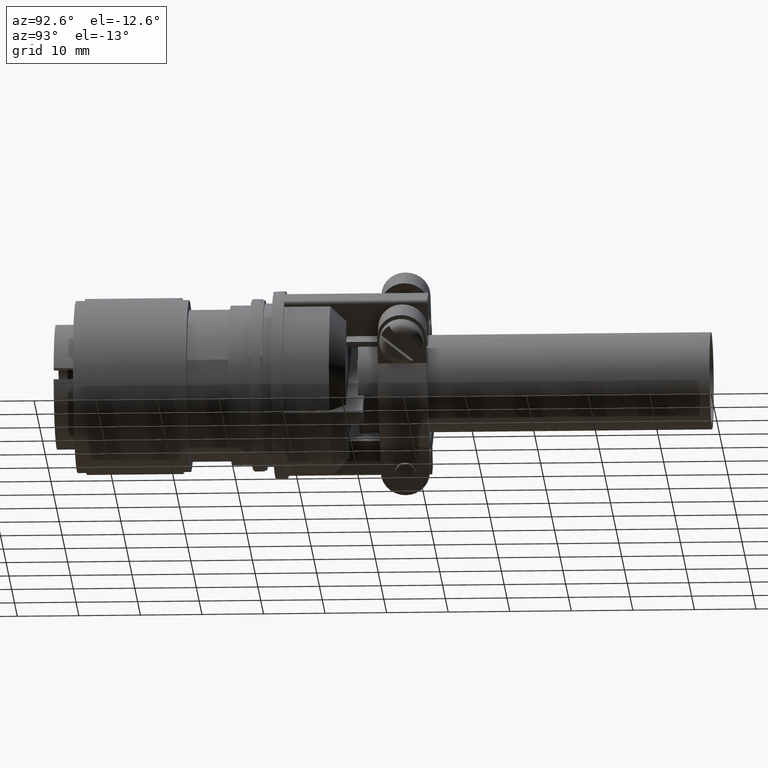
[diagram: clean part render]
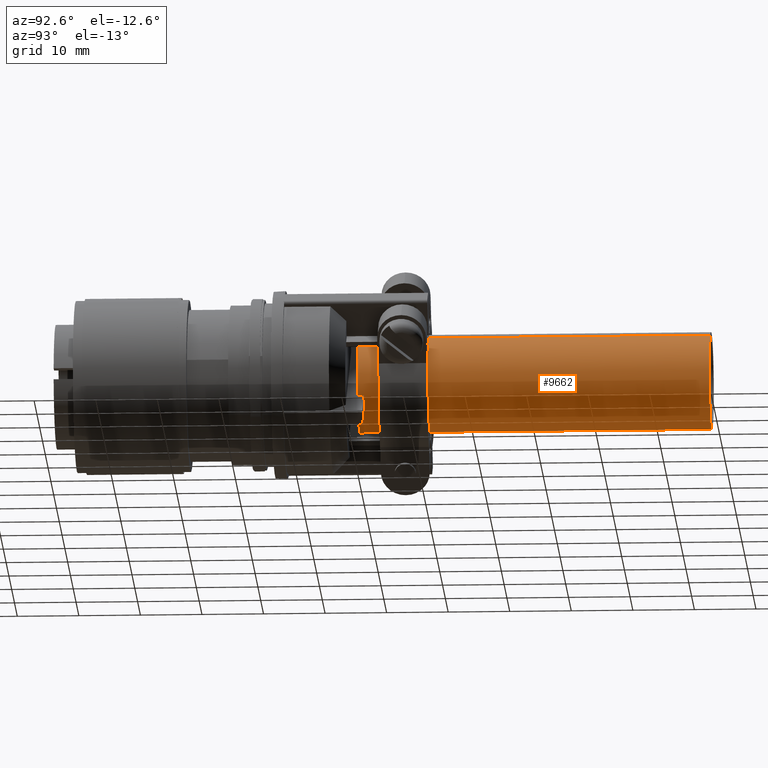
[diagram: same view with one face highlighted and labeled with its STEP entity id]
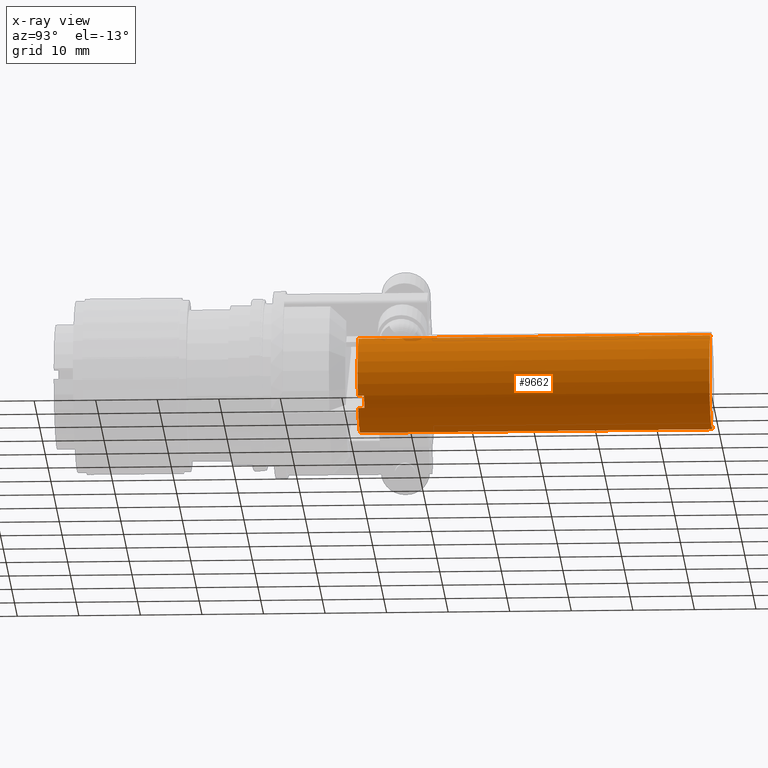
[diagram: x-ray of the same camera — body ghosted, the highlighted face saturated]
A machine part, auxiliary view. The second image highlights one B-rep face of the part: STEP entity #9662.
The next image is the same camera in x-ray: the body ghosted, the highlighted face saturated — about 0% of this face is hidden behind the body in this view.
In plain terms, the highlighted cylindrical surface (partial cylindrical patch) has radius 7.9375 mm, axis along (0, 1, 0).
Its self-contained STEP definition (entity closure, byte-faithful):
#265 = EDGE_CURVE ( 'NONE', #16220, #16207, #627, .T. ) ;
#267 = EDGE_CURVE ( 'NONE', #16315, #16337, #628, .T. ) ;
#268 = EDGE_CURVE ( 'NONE', #16337, #16328, #631, .T. ) ;
#271 = EDGE_CURVE ( 'NONE', #16328, #440, #634, .T. ) ;
#277 = EDGE_CURVE ( 'NONE', #440, #16202, #644, .T. ) ;
#288 = EDGE_CURVE ( 'NONE', #16223, #16315, #660, .T. ) ;
#440 = VERTEX_POINT ( 'NONE', #19351 ) ;
#627 = CIRCLE ( 'NONE', #2007, 0.3125000000000000000 ) ;
#628 = LINE ( 'NONE', #19259, #632 ) ;
#631 = CIRCLE ( 'NONE', #2008, 0.3125000000000000000 ) ;
#632 = VECTOR ( 'NONE', #19290, 39.37007874015748100 ) ;
#633 = VECTOR ( 'NONE', #18823, 39.37007874015748100 ) ;
#634 = LINE ( 'NONE', #18819, #633 ) ;
#644 = CIRCLE ( 'NONE', #2011, 0.3125000000000000000 ) ;
#660 = CIRCLE ( 'NONE', #2017, 0.3125000000000000000 ) ;
#2007 = AXIS2_PLACEMENT_3D ( 'NONE', #19268, #19271, #19269 ) ;
#2008 = AXIS2_PLACEMENT_3D ( 'NONE', #18526, #19312, #18463 ) ;
#2011 = AXIS2_PLACEMENT_3D ( 'NONE', #18778, #19146, #18842 ) ;
#2017 = AXIS2_PLACEMENT_3D ( 'NONE', #18544, #18539, #18534 ) ;
#2560 = AXIS2_PLACEMENT_3D ( 'NONE', #5032, #5031, #5024 ) ;
#4890 = CARTESIAN_POINT ( 'NONE',  ( -0.3125000000000000000, 0.0000000000000000000, 2.250000000000000000 ) ) ;
#4891 = DIRECTION ( 'NONE',  ( -0.0000000000000000000, -0.0000000000000000000, -1.000000000000000000 ) ) ;
#4901 = CARTESIAN_POINT ( 'NONE',  ( 0.3125000000000000000, 3.827021247335478900E-017, 2.250000000000000000 ) ) ;
#4902 = DIRECTION ( 'NONE',  ( -0.0000000000000000000, -0.0000000000000000000, -1.000000000000000000 ) ) ;
#5024 = DIRECTION ( 'NONE',  ( -1.000000000000000000, 0.0000000000000000000, 0.0000000000000000000 ) ) ;
#5031 = DIRECTION ( 'NONE',  ( -0.0000000000000000000, -0.0000000000000000000, -1.000000000000000000 ) ) ;
#5032 = CARTESIAN_POINT ( 'NONE',  ( 0.0000000000000000000, 0.0000000000000000000, 2.250000000000000000 ) ) ;
#5355 = VECTOR ( 'NONE', #4891, 39.37007874015748100 ) ;
#5357 = VECTOR ( 'NONE', #4902, 39.37007874015748100 ) ;
#5359 = LINE ( 'NONE', #4890, #5355 ) ;
#5365 = LINE ( 'NONE', #4901, #5357 ) ;
#5419 = FACE_OUTER_BOUND ( 'NONE', #10916, .T. ) ;
#5423 = CYLINDRICAL_SURFACE ( 'NONE', #2560, 0.3125000000000000000 ) ;
#9618 = EDGE_CURVE ( 'NONE', #16223, #16220, #5359, .T. ) ;
#9622 = EDGE_CURVE ( 'NONE', #16202, #16207, #5365, .T. ) ;
#9662 = ADVANCED_FACE ( 'NONE', ( #5419 ), #5423, .T. ) ;
#10916 = EDGE_LOOP ( 'NONE', ( #20695, #20693, #20691, #20689, #20687, #20684, #20682, #20680 ) ) ;
#14125 = CARTESIAN_POINT ( 'NONE',  ( 0.3125000000000000000, 3.827021247335478900E-017, 2.250000000000000000 ) ) ;
#14130 = CARTESIAN_POINT ( 'NONE',  ( 0.3125000000000000000, 3.827021247335478900E-017, 0.0000000000000000000 ) ) ;
#14141 = CARTESIAN_POINT ( 'NONE',  ( -0.3125000000000000000, 0.0000000000000000000, 0.0000000000000000000 ) ) ;
#14144 = CARTESIAN_POINT ( 'NONE',  ( -0.3125000000000000000, 0.0000000000000000000, 2.250000000000000000 ) ) ;
#14236 = CARTESIAN_POINT ( 'NONE',  ( -0.04249999999999988500, -0.3095965116082544100, 2.250000000000000000 ) ) ;
#14249 = CARTESIAN_POINT ( 'NONE',  ( 0.04250000000000010000, -0.3095965116082543500, 2.210000000000000000 ) ) ;
#14258 = CARTESIAN_POINT ( 'NONE',  ( -0.04249999999999986400, -0.3095965116082543500, 2.210000000000000000 ) ) ;
#16202 = VERTEX_POINT ( 'NONE', #14125 ) ;
#16207 = VERTEX_POINT ( 'NONE', #14130 ) ;
#16220 = VERTEX_POINT ( 'NONE', #14141 ) ;
#16223 = VERTEX_POINT ( 'NONE', #14144 ) ;
#16315 = VERTEX_POINT ( 'NONE', #14236 ) ;
#16328 = VERTEX_POINT ( 'NONE', #14249 ) ;
#16337 = VERTEX_POINT ( 'NONE', #14258 ) ;
#18463 = DIRECTION ( 'NONE',  ( 1.000000000000000000, 0.0000000000000000000, 0.0000000000000000000 ) ) ;
#18526 = CARTESIAN_POINT ( 'NONE',  ( 0.0000000000000000000, 0.0000000000000000000, 2.210000000000000000 ) ) ;
#18534 = DIRECTION ( 'NONE',  ( 1.000000000000000000, 0.0000000000000000000, 0.0000000000000000000 ) ) ;
#18539 = DIRECTION ( 'NONE',  ( 0.0000000000000000000, 0.0000000000000000000, 1.000000000000000000 ) ) ;
#18544 = CARTESIAN_POINT ( 'NONE',  ( 0.0000000000000000000, 0.0000000000000000000, 2.250000000000000000 ) ) ;
#18778 = CARTESIAN_POINT ( 'NONE',  ( 0.0000000000000000000, 0.0000000000000000000, 2.250000000000000000 ) ) ;
#18819 = CARTESIAN_POINT ( 'NONE',  ( 0.04250000000000012100, -0.3095965116082544100, 2.250000000000000000 ) ) ;
#18823 = DIRECTION ( 'NONE',  ( 0.0000000000000000000, 0.0000000000000000000, 1.000000000000000000 ) ) ;
#18842 = DIRECTION ( 'NONE',  ( 1.000000000000000000, 0.0000000000000000000, 0.0000000000000000000 ) ) ;
#19146 = DIRECTION ( 'NONE',  ( 0.0000000000000000000, 0.0000000000000000000, 1.000000000000000000 ) ) ;
#19259 = CARTESIAN_POINT ( 'NONE',  ( -0.04249999999999988500, -0.3095965116082544100, 2.250000000000000000 ) ) ;
#19268 = CARTESIAN_POINT ( 'NONE',  ( 0.0000000000000000000, 0.0000000000000000000, 0.0000000000000000000 ) ) ;
#19269 = DIRECTION ( 'NONE',  ( 1.000000000000000000, 0.0000000000000000000, 0.0000000000000000000 ) ) ;
#19271 = DIRECTION ( 'NONE',  ( 0.0000000000000000000, 0.0000000000000000000, 1.000000000000000000 ) ) ;
#19290 = DIRECTION ( 'NONE',  ( -0.0000000000000000000, -0.0000000000000000000, -1.000000000000000000 ) ) ;
#19312 = DIRECTION ( 'NONE',  ( -0.0000000000000000000, 0.0000000000000000000, 1.000000000000000000 ) ) ;
#19351 = CARTESIAN_POINT ( 'NONE',  ( 0.04250000000000012100, -0.3095965116082544100, 2.250000000000000000 ) ) ;
#20680 = ORIENTED_EDGE ( 'NONE', *, *, #265, .T. ) ;
#20682 = ORIENTED_EDGE ( 'NONE', *, *, #9618, .T. ) ;
#20684 = ORIENTED_EDGE ( 'NONE', *, *, #288, .F. ) ;
#20687 = ORIENTED_EDGE ( 'NONE', *, *, #267, .F. ) ;
#20689 = ORIENTED_EDGE ( 'NONE', *, *, #268, .F. ) ;
#20691 = ORIENTED_EDGE ( 'NONE', *, *, #271, .F. ) ;
#20693 = ORIENTED_EDGE ( 'NONE', *, *, #277, .F. ) ;
#20695 = ORIENTED_EDGE ( 'NONE', *, *, #9622, .F. ) ;